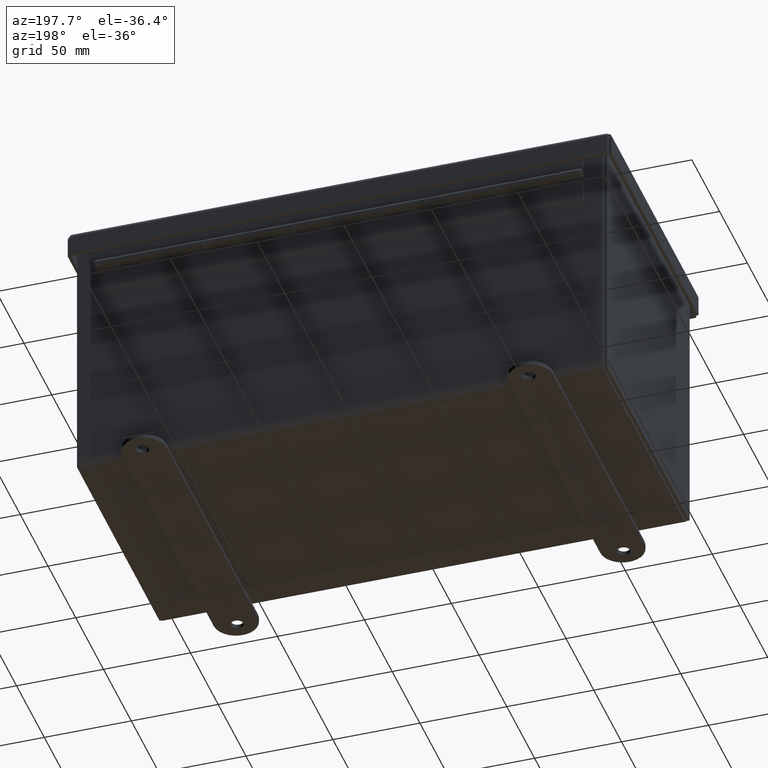
[diagram: clean part render]
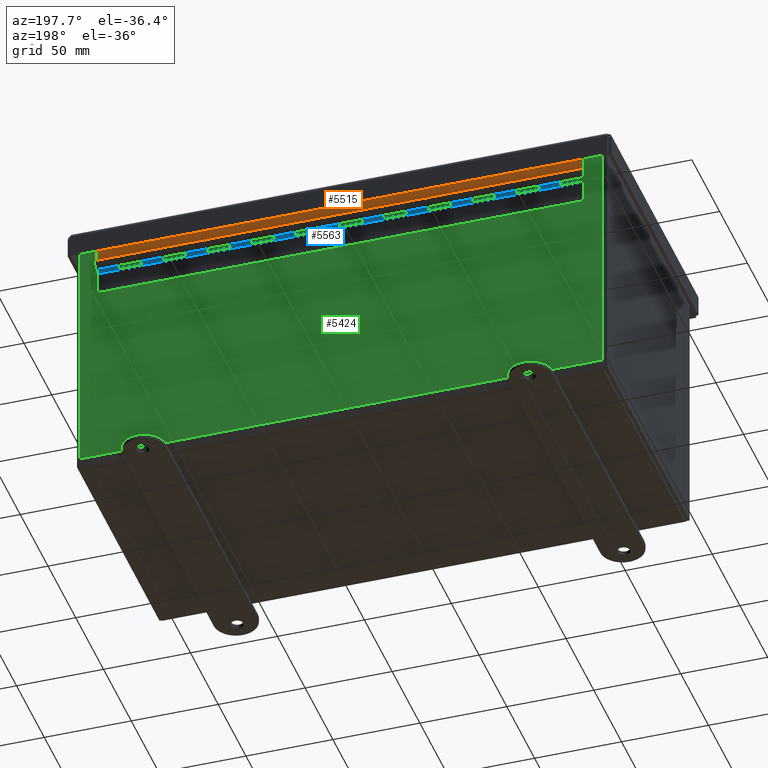
[diagram: same view with three faces highlighted in distinct colors, each labeled with its STEP entity id]
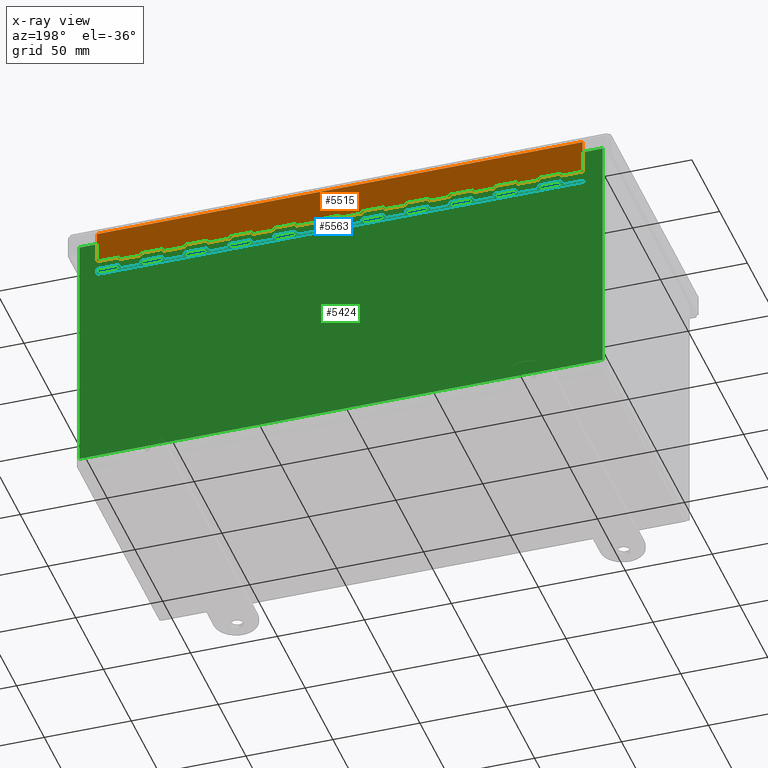
[diagram: x-ray of the same camera — body ghosted, the three highlighted faces saturated]
A machine part, auxiliary view with three faces highlighted in distinct colors.
The next image is the same camera in x-ray (body ghosted, the three faces saturated) — at least one of them is partly hidden behind the body in this view.
Their STEP definitions:

[orange] entity #5515 — the highlighted planar face has unit normal (0, 1, 0).
#279=PLANE('',#6085);
#518=FACE_OUTER_BOUND('',#843,.T.);
#843=EDGE_LOOP('',(#4172,#4173,#4174,#4175,#4176,#4177,#4178,#4179,#4180,
#4181,#4182,#4183,#4184,#4185,#4186,#4187,#4188,#4189,#4190,#4191,#4192,
#4193,#4194,#4195,#4196,#4197,#4198,#4199,#4200,#4201,#4202,#4203,#4204,
#4205,#4206,#4207,#4208,#4209,#4210,#4211,#4212,#4213,#4214,#4215,#4216,
#4217));
#1343=LINE('',#8250,#1911);
#1344=LINE('',#8258,#1912);
#1347=LINE('',#8265,#1915);
#1351=LINE('',#8275,#1919);
#1352=LINE('',#8283,#1920);
#1355=LINE('',#8290,#1923);
#1359=LINE('',#8300,#1927);
#1360=LINE('',#8308,#1928);
#1363=LINE('',#8315,#1931);
#1367=LINE('',#8325,#1935);
#1368=LINE('',#8333,#1936);
#1371=LINE('',#8340,#1939);
#1375=LINE('',#8350,#1943);
#1376=LINE('',#8358,#1944);
#1379=LINE('',#8365,#1947);
#1383=LINE('',#8375,#1951);
#1384=LINE('',#8383,#1952);
#1387=LINE('',#8390,#1955);
#1391=LINE('',#8400,#1959);
#1392=LINE('',#8408,#1960);
#1395=LINE('',#8415,#1963);
#1399=LINE('',#8425,#1967);
#1400=LINE('',#8433,#1968);
#1403=LINE('',#8440,#1971);
#1407=LINE('',#8450,#1975);
#1408=LINE('',#8458,#1976);
#1411=LINE('',#8465,#1979);
#1415=LINE('',#8475,#1983);
#1416=LINE('',#8483,#1984);
#1419=LINE('',#8490,#1987);
#1437=LINE('',#8517,#2005);
#1438=LINE('',#8520,#2006);
#1439=LINE('',#8522,#2007);
#1440=LINE('',#8524,#2008);
#1441=LINE('',#8526,#2009);
#1442=LINE('',#8528,#2010);
#1443=LINE('',#8530,#2011);
#1444=LINE('',#8532,#2012);
#1445=LINE('',#8534,#2013);
#1446=LINE('',#8538,#2014);
#1447=LINE('',#8540,#2015);
#1458=LINE('',#8566,#2026);
#1461=LINE('',#8570,#2029);
#1462=LINE('',#8573,#2030);
#1464=LINE('',#8577,#2032);
#1465=LINE('',#8578,#2033);
#1911=VECTOR('',#6708,0.393700787401575);
#1912=VECTOR('',#6715,0.393700787401575);
#1915=VECTOR('',#6722,0.393700787401575);
#1919=VECTOR('',#6730,0.393700787401575);
#1920=VECTOR('',#6737,0.393700787401575);
#1923=VECTOR('',#6744,0.393700787401575);
#1927=VECTOR('',#6752,0.393700787401575);
#1928=VECTOR('',#6759,0.393700787401575);
#1931=VECTOR('',#6766,0.393700787401575);
#1935=VECTOR('',#6774,0.393700787401575);
#1936=VECTOR('',#6781,0.393700787401575);
#1939=VECTOR('',#6788,0.393700787401575);
#1943=VECTOR('',#6796,0.393700787401575);
#1944=VECTOR('',#6803,0.393700787401575);
#1947=VECTOR('',#6810,0.393700787401575);
#1951=VECTOR('',#6818,0.393700787401575);
#1952=VECTOR('',#6825,0.393700787401575);
#1955=VECTOR('',#6832,0.393700787401575);
#1959=VECTOR('',#6840,0.393700787401575);
#1960=VECTOR('',#6847,0.393700787401575);
#1963=VECTOR('',#6854,0.393700787401575);
#1967=VECTOR('',#6862,0.393700787401575);
#1968=VECTOR('',#6869,0.393700787401575);
#1971=VECTOR('',#6876,0.393700787401575);
#1975=VECTOR('',#6884,0.393700787401575);
#1976=VECTOR('',#6891,0.393700787401575);
#1979=VECTOR('',#6898,0.393700787401575);
#1983=VECTOR('',#6906,0.393700787401575);
#1984=VECTOR('',#6913,0.393700787401575);
#1987=VECTOR('',#6920,0.393700787401575);
#2005=VECTOR('',#6942,0.393700787401575);
#2006=VECTOR('',#6947,0.393700787401575);
#2007=VECTOR('',#6950,0.393700787401575);
#2008=VECTOR('',#6953,0.393700787401575);
#2009=VECTOR('',#6956,0.393700787401575);
#2010=VECTOR('',#6959,0.393700787401575);
#2011=VECTOR('',#6962,0.393700787401575);
#2012=VECTOR('',#6965,0.393700787401575);
#2013=VECTOR('',#6968,0.393700787401575);
#2014=VECTOR('',#6973,0.393700787401575);
#2015=VECTOR('',#6976,0.393700787401575);
#2026=VECTOR('',#7011,0.393700787401575);
#2029=VECTOR('',#7016,0.393700787401575);
#2030=VECTOR('',#7019,0.393700787401575);
#2032=VECTOR('',#7023,0.393700787401575);
#2033=VECTOR('',#7024,0.393700787401575);
#2444=VERTEX_POINT('',#8244);
#2446=VERTEX_POINT('',#8248);
#2448=VERTEX_POINT('',#8254);
#2450=VERTEX_POINT('',#8257);
#2454=VERTEX_POINT('',#8269);
#2456=VERTEX_POINT('',#8273);
#2458=VERTEX_POINT('',#8279);
#2460=VERTEX_POINT('',#8282);
#2464=VERTEX_POINT('',#8294);
#2466=VERTEX_POINT('',#8298);
#2468=VERTEX_POINT('',#8304);
#2470=VERTEX_POINT('',#8307);
#2474=VERTEX_POINT('',#8319);
#2476=VERTEX_POINT('',#8323);
#2478=VERTEX_POINT('',#8329);
#2480=VERTEX_POINT('',#8332);
#2484=VERTEX_POINT('',#8344);
#2486=VERTEX_POINT('',#8348);
#2488=VERTEX_POINT('',#8354);
#2490=VERTEX_POINT('',#8357);
#2494=VERTEX_POINT('',#8369);
#2496=VERTEX_POINT('',#8373);
#2498=VERTEX_POINT('',#8379);
#2500=VERTEX_POINT('',#8382);
#2504=VERTEX_POINT('',#8394);
#2506=VERTEX_POINT('',#8398);
#2508=VERTEX_POINT('',#8404);
#2510=VERTEX_POINT('',#8407);
#2514=VERTEX_POINT('',#8419);
#2516=VERTEX_POINT('',#8423);
#2518=VERTEX_POINT('',#8429);
#2520=VERTEX_POINT('',#8432);
#2524=VERTEX_POINT('',#8444);
#2526=VERTEX_POINT('',#8448);
#2528=VERTEX_POINT('',#8454);
#2530=VERTEX_POINT('',#8457);
#2534=VERTEX_POINT('',#8469);
#2536=VERTEX_POINT('',#8473);
#2538=VERTEX_POINT('',#8479);
#2540=VERTEX_POINT('',#8482);
#2549=VERTEX_POINT('',#8516);
#2550=VERTEX_POINT('',#8536);
#2552=VERTEX_POINT('',#8564);
#2553=VERTEX_POINT('',#8565);
#2554=VERTEX_POINT('',#8572);
#2555=VERTEX_POINT('',#8576);
#2988=EDGE_CURVE('',#2444,#2446,#1343,.T.);
#2991=EDGE_CURVE('',#2450,#2448,#1344,.T.);
#2995=EDGE_CURVE('',#2446,#2450,#1347,.T.);
#3000=EDGE_CURVE('',#2454,#2456,#1351,.T.);
#3003=EDGE_CURVE('',#2460,#2458,#1352,.T.);
#3007=EDGE_CURVE('',#2456,#2460,#1355,.T.);
#3012=EDGE_CURVE('',#2464,#2466,#1359,.T.);
#3015=EDGE_CURVE('',#2470,#2468,#1360,.T.);
#3019=EDGE_CURVE('',#2466,#2470,#1363,.T.);
#3024=EDGE_CURVE('',#2474,#2476,#1367,.T.);
#3027=EDGE_CURVE('',#2480,#2478,#1368,.T.);
#3031=EDGE_CURVE('',#2476,#2480,#1371,.T.);
#3036=EDGE_CURVE('',#2484,#2486,#1375,.T.);
#3039=EDGE_CURVE('',#2490,#2488,#1376,.T.);
#3043=EDGE_CURVE('',#2486,#2490,#1379,.T.);
#3048=EDGE_CURVE('',#2494,#2496,#1383,.T.);
#3051=EDGE_CURVE('',#2500,#2498,#1384,.T.);
#3055=EDGE_CURVE('',#2496,#2500,#1387,.T.);
#3060=EDGE_CURVE('',#2504,#2506,#1391,.T.);
#3063=EDGE_CURVE('',#2510,#2508,#1392,.T.);
#3067=EDGE_CURVE('',#2506,#2510,#1395,.T.);
#3072=EDGE_CURVE('',#2514,#2516,#1399,.T.);
#3075=EDGE_CURVE('',#2520,#2518,#1400,.T.);
#3079=EDGE_CURVE('',#2516,#2520,#1403,.T.);
#3084=EDGE_CURVE('',#2524,#2526,#1407,.T.);
#3087=EDGE_CURVE('',#2530,#2528,#1408,.T.);
#3091=EDGE_CURVE('',#2526,#2530,#1411,.T.);
#3096=EDGE_CURVE('',#2534,#2536,#1415,.T.);
#3099=EDGE_CURVE('',#2540,#2538,#1416,.T.);
#3103=EDGE_CURVE('',#2536,#2540,#1419,.T.);
#3121=EDGE_CURVE('',#2549,#2534,#1437,.T.);
#3123=EDGE_CURVE('',#2538,#2524,#1438,.T.);
#3124=EDGE_CURVE('',#2528,#2514,#1439,.T.);
#3125=EDGE_CURVE('',#2518,#2504,#1440,.T.);
#3126=EDGE_CURVE('',#2508,#2494,#1441,.T.);
#3127=EDGE_CURVE('',#2498,#2484,#1442,.T.);
#3128=EDGE_CURVE('',#2488,#2474,#1443,.T.);
#3129=EDGE_CURVE('',#2478,#2464,#1444,.T.);
#3130=EDGE_CURVE('',#2468,#2454,#1445,.T.);
#3132=EDGE_CURVE('',#2448,#2550,#1446,.T.);
#3133=EDGE_CURVE('',#2458,#2444,#1447,.T.);
#3145=EDGE_CURVE('',#2552,#2553,#1458,.T.);
#3148=EDGE_CURVE('',#2553,#2549,#1461,.T.);
#3149=EDGE_CURVE('',#2554,#2552,#1462,.T.);
#3151=EDGE_CURVE('',#2550,#2555,#1464,.T.);
#3152=EDGE_CURVE('',#2554,#2555,#1465,.T.);
#4172=ORIENTED_EDGE('',*,*,#2991,.T.);
#4173=ORIENTED_EDGE('',*,*,#3132,.T.);
#4174=ORIENTED_EDGE('',*,*,#3151,.T.);
#4175=ORIENTED_EDGE('',*,*,#3152,.F.);
#4176=ORIENTED_EDGE('',*,*,#3149,.T.);
#4177=ORIENTED_EDGE('',*,*,#3145,.T.);
#4178=ORIENTED_EDGE('',*,*,#3148,.T.);
#4179=ORIENTED_EDGE('',*,*,#3121,.T.);
#4180=ORIENTED_EDGE('',*,*,#3096,.T.);
#4181=ORIENTED_EDGE('',*,*,#3103,.T.);
#4182=ORIENTED_EDGE('',*,*,#3099,.T.);
#4183=ORIENTED_EDGE('',*,*,#3123,.T.);
#4184=ORIENTED_EDGE('',*,*,#3084,.T.);
#4185=ORIENTED_EDGE('',*,*,#3091,.T.);
#4186=ORIENTED_EDGE('',*,*,#3087,.T.);
#4187=ORIENTED_EDGE('',*,*,#3124,.T.);
#4188=ORIENTED_EDGE('',*,*,#3072,.T.);
#4189=ORIENTED_EDGE('',*,*,#3079,.T.);
#4190=ORIENTED_EDGE('',*,*,#3075,.T.);
#4191=ORIENTED_EDGE('',*,*,#3125,.T.);
#4192=ORIENTED_EDGE('',*,*,#3060,.T.);
#4193=ORIENTED_EDGE('',*,*,#3067,.T.);
#4194=ORIENTED_EDGE('',*,*,#3063,.T.);
#4195=ORIENTED_EDGE('',*,*,#3126,.T.);
#4196=ORIENTED_EDGE('',*,*,#3048,.T.);
#4197=ORIENTED_EDGE('',*,*,#3055,.T.);
#4198=ORIENTED_EDGE('',*,*,#3051,.T.);
#4199=ORIENTED_EDGE('',*,*,#3127,.T.);
#4200=ORIENTED_EDGE('',*,*,#3036,.T.);
#4201=ORIENTED_EDGE('',*,*,#3043,.T.);
#4202=ORIENTED_EDGE('',*,*,#3039,.T.);
#4203=ORIENTED_EDGE('',*,*,#3128,.T.);
#4204=ORIENTED_EDGE('',*,*,#3024,.T.);
#4205=ORIENTED_EDGE('',*,*,#3031,.T.);
#4206=ORIENTED_EDGE('',*,*,#3027,.T.);
#4207=ORIENTED_EDGE('',*,*,#3129,.T.);
#4208=ORIENTED_EDGE('',*,*,#3012,.T.);
#4209=ORIENTED_EDGE('',*,*,#3019,.T.);
#4210=ORIENTED_EDGE('',*,*,#3015,.T.);
#4211=ORIENTED_EDGE('',*,*,#3130,.T.);
#4212=ORIENTED_EDGE('',*,*,#3000,.T.);
#4213=ORIENTED_EDGE('',*,*,#3007,.T.);
#4214=ORIENTED_EDGE('',*,*,#3003,.T.);
#4215=ORIENTED_EDGE('',*,*,#3133,.T.);
#4216=ORIENTED_EDGE('',*,*,#2988,.T.);
#4217=ORIENTED_EDGE('',*,*,#2995,.T.);
#5515=ADVANCED_FACE('',(#518),#279,.T.);
#6085=AXIS2_PLACEMENT_3D('',#8575,#7021,#7022);
#6708=DIRECTION('',(2.77105453058943E-16,-1.,0.));
#6715=DIRECTION('',(-2.77105453058943E-16,1.,0.));
#6722=DIRECTION('',(2.38341037104384E-47,-8.60109515974361E-32,1.));
#6730=DIRECTION('',(2.77105453058943E-16,-1.,0.));
#6737=DIRECTION('',(-2.77105453058943E-16,1.,0.));
#6744=DIRECTION('',(2.38341037104384E-47,-8.60109515974361E-32,1.));
#6752=DIRECTION('',(2.77105453058943E-16,-1.,0.));
#6759=DIRECTION('',(-2.77105453058943E-16,1.,0.));
#6766=DIRECTION('',(2.38341037104384E-47,-8.60109515974361E-32,1.));
#6774=DIRECTION('',(2.77105453058943E-16,-1.,0.));
#6781=DIRECTION('',(-2.77105453058943E-16,1.,0.));
#6788=DIRECTION('',(2.38341037104384E-47,-8.60109515974361E-32,1.));
#6796=DIRECTION('',(2.77105453058943E-16,-1.,0.));
#6803=DIRECTION('',(-2.77105453058943E-16,1.,0.));
#6810=DIRECTION('',(2.38341037104384E-47,-8.60109515974361E-32,1.));
#6818=DIRECTION('',(2.77105453058943E-16,-1.,0.));
#6825=DIRECTION('',(-2.77105453058943E-16,1.,0.));
#6832=DIRECTION('',(2.38341037104384E-47,-8.60109515974361E-32,1.));
#6840=DIRECTION('',(2.77105453058943E-16,-1.,0.));
#6847=DIRECTION('',(-2.77105453058943E-16,1.,0.));
#6854=DIRECTION('',(2.38341037104384E-47,-8.60109515974361E-32,1.));
#6862=DIRECTION('',(2.77105453058943E-16,-1.,0.));
#6869=DIRECTION('',(-2.77105453058943E-16,1.,0.));
#6876=DIRECTION('',(2.38341037104384E-47,-8.60109515974361E-32,1.));
#6884=DIRECTION('',(2.77105453058943E-16,-1.,0.));
#6891=DIRECTION('',(-2.77105453058943E-16,1.,0.));
#6898=DIRECTION('',(2.38341037104384E-47,-8.60109515974361E-32,1.));
#6906=DIRECTION('',(2.77105453058943E-16,-1.,0.));
#6913=DIRECTION('',(-2.77105453058943E-16,1.,0.));
#6920=DIRECTION('',(2.38341037104384E-47,-8.60109515974361E-32,1.));
#6942=DIRECTION('',(0.,0.,1.));
#6947=DIRECTION('',(0.,0.,1.));
#6950=DIRECTION('',(0.,0.,1.));
#6953=DIRECTION('',(0.,0.,1.));
#6956=DIRECTION('',(0.,0.,1.));
#6959=DIRECTION('',(0.,0.,1.));
#6962=DIRECTION('',(0.,0.,1.));
#6965=DIRECTION('',(0.,0.,1.));
#6968=DIRECTION('',(0.,0.,1.));
#6973=DIRECTION('',(0.,0.,1.));
#6976=DIRECTION('',(0.,0.,1.));
#7011=DIRECTION('',(2.38341037104384E-47,-8.60109515974361E-32,1.));
#7016=DIRECTION('',(-2.77105453058943E-16,1.,0.));
#7019=DIRECTION('',(-2.77105453058943E-16,1.,0.));
#7021=DIRECTION('center_axis',(1.,2.77105453058943E-16,0.));
#7022=DIRECTION('ref_axis',(0.,0.,-1.));
#7023=DIRECTION('',(2.77105453058943E-16,-1.,0.));
#7024=DIRECTION('',(0.,0.,1.));
#8244=CARTESIAN_POINT('',(0.0417999999999998,0.78868112150306,10.));
#8248=CARTESIAN_POINT('',(0.0417999999999998,0.73,10.));
#8250=CARTESIAN_POINT('',(0.0417999999999997,0.87934056075153,10.));
#8254=CARTESIAN_POINT('',(0.0417999999999998,0.78868112150306,10.515));
#8257=CARTESIAN_POINT('',(0.0417999999999998,0.73,10.515));
#8258=CARTESIAN_POINT('',(0.0417999999999997,0.87934056075153,10.515));
#8265=CARTESIAN_POINT('',(0.0417999999999998,0.73,5.12875));
#8269=CARTESIAN_POINT('',(0.0417999999999998,0.78868112150306,9.));
#8273=CARTESIAN_POINT('',(0.0417999999999998,0.73,9.));
#8275=CARTESIAN_POINT('',(0.0417999999999997,0.87934056075153,9.));
#8279=CARTESIAN_POINT('',(0.0417999999999998,0.78868112150306,9.515));
#8282=CARTESIAN_POINT('',(0.0417999999999998,0.73,9.515));
#8283=CARTESIAN_POINT('',(0.0417999999999997,0.87934056075153,9.515));
#8290=CARTESIAN_POINT('',(0.0417999999999998,0.73,4.62875));
#8294=CARTESIAN_POINT('',(0.0417999999999998,0.78868112150306,8.));
#8298=CARTESIAN_POINT('',(0.0417999999999998,0.73,8.));
#8300=CARTESIAN_POINT('',(0.0417999999999997,0.87934056075153,8.));
#8304=CARTESIAN_POINT('',(0.0417999999999998,0.78868112150306,8.515));
#8307=CARTESIAN_POINT('',(0.0417999999999998,0.73,8.515));
#8308=CARTESIAN_POINT('',(0.0417999999999997,0.87934056075153,8.515));
#8315=CARTESIAN_POINT('',(0.0417999999999998,0.73,4.12875));
#8319=CARTESIAN_POINT('',(0.0417999999999998,0.78868112150306,7.));
#8323=CARTESIAN_POINT('',(0.0417999999999998,0.73,7.));
#8325=CARTESIAN_POINT('',(0.0417999999999997,0.87934056075153,7.));
#8329=CARTESIAN_POINT('',(0.0417999999999998,0.78868112150306,7.515));
#8332=CARTESIAN_POINT('',(0.0417999999999998,0.73,7.515));
#8333=CARTESIAN_POINT('',(0.0417999999999997,0.87934056075153,7.515));
#8340=CARTESIAN_POINT('',(0.0417999999999998,0.73,3.62875));
#8344=CARTESIAN_POINT('',(0.0417999999999998,0.78868112150306,6.));
#8348=CARTESIAN_POINT('',(0.0417999999999998,0.73,6.));
#8350=CARTESIAN_POINT('',(0.0417999999999997,0.87934056075153,6.));
#8354=CARTESIAN_POINT('',(0.0417999999999998,0.78868112150306,6.515));
#8357=CARTESIAN_POINT('',(0.0417999999999998,0.73,6.515));
#8358=CARTESIAN_POINT('',(0.0417999999999997,0.87934056075153,6.515));
#8365=CARTESIAN_POINT('',(0.0417999999999998,0.73,3.12875));
#8369=CARTESIAN_POINT('',(0.0417999999999998,0.78868112150306,5.));
#8373=CARTESIAN_POINT('',(0.0417999999999998,0.73,5.));
#8375=CARTESIAN_POINT('',(0.0417999999999997,0.87934056075153,5.));
#8379=CARTESIAN_POINT('',(0.0417999999999998,0.78868112150306,5.515));
#8382=CARTESIAN_POINT('',(0.0417999999999998,0.73,5.515));
#8383=CARTESIAN_POINT('',(0.0417999999999997,0.87934056075153,5.515));
#8390=CARTESIAN_POINT('',(0.0417999999999998,0.73,2.62875));
#8394=CARTESIAN_POINT('',(0.0417999999999998,0.78868112150306,4.));
#8398=CARTESIAN_POINT('',(0.0417999999999998,0.73,4.));
#8400=CARTESIAN_POINT('',(0.0417999999999997,0.87934056075153,4.));
#8404=CARTESIAN_POINT('',(0.0417999999999998,0.78868112150306,4.515));
#8407=CARTESIAN_POINT('',(0.0417999999999998,0.73,4.515));
#8408=CARTESIAN_POINT('',(0.0417999999999997,0.87934056075153,4.515));
#8415=CARTESIAN_POINT('',(0.0417999999999998,0.73,2.12875));
#8419=CARTESIAN_POINT('',(0.0417999999999998,0.78868112150306,3.));
#8423=CARTESIAN_POINT('',(0.0417999999999998,0.73,3.));
#8425=CARTESIAN_POINT('',(0.0417999999999997,0.87934056075153,3.));
#8429=CARTESIAN_POINT('',(0.0417999999999998,0.78868112150306,3.515));
#8432=CARTESIAN_POINT('',(0.0417999999999998,0.73,3.515));
#8433=CARTESIAN_POINT('',(0.0417999999999997,0.87934056075153,3.515));
#8440=CARTESIAN_POINT('',(0.0417999999999998,0.73,1.62875));
#8444=CARTESIAN_POINT('',(0.0417999999999998,0.78868112150306,2.));
#8448=CARTESIAN_POINT('',(0.0417999999999998,0.73,2.));
#8450=CARTESIAN_POINT('',(0.0417999999999997,0.87934056075153,2.));
#8454=CARTESIAN_POINT('',(0.0417999999999998,0.78868112150306,2.515));
#8457=CARTESIAN_POINT('',(0.0417999999999998,0.73,2.515));
#8458=CARTESIAN_POINT('',(0.0417999999999997,0.87934056075153,2.515));
#8465=CARTESIAN_POINT('',(0.0417999999999998,0.73,1.12875));
#8469=CARTESIAN_POINT('',(0.0417999999999998,0.78868112150306,1.));
#8473=CARTESIAN_POINT('',(0.0417999999999998,0.73,1.));
#8475=CARTESIAN_POINT('',(0.0417999999999997,0.87934056075153,1.));
#8479=CARTESIAN_POINT('',(0.0417999999999998,0.78868112150306,1.515));
#8482=CARTESIAN_POINT('',(0.0417999999999998,0.73,1.515));
#8483=CARTESIAN_POINT('',(0.0417999999999997,0.87934056075153,1.515));
#8490=CARTESIAN_POINT('',(0.0417999999999998,0.73,0.62875));
#8516=CARTESIAN_POINT('',(0.0417999999999998,0.78868112150306,0.515));
#8517=CARTESIAN_POINT('',(0.0417999999999998,0.78868112150306,0.));
#8520=CARTESIAN_POINT('',(0.0417999999999998,0.78868112150306,0.));
#8522=CARTESIAN_POINT('',(0.0417999999999998,0.78868112150306,0.));
#8524=CARTESIAN_POINT('',(0.0417999999999998,0.78868112150306,0.));
#8526=CARTESIAN_POINT('',(0.0417999999999998,0.78868112150306,0.));
#8528=CARTESIAN_POINT('',(0.0417999999999998,0.78868112150306,0.));
#8530=CARTESIAN_POINT('',(0.0417999999999998,0.78868112150306,0.));
#8532=CARTESIAN_POINT('',(0.0417999999999998,0.78868112150306,0.));
#8534=CARTESIAN_POINT('',(0.0417999999999998,0.78868112150306,0.));
#8536=CARTESIAN_POINT('',(0.0417999999999998,0.78868112150306,11.));
#8538=CARTESIAN_POINT('',(0.0417999999999998,0.78868112150306,0.));
#8540=CARTESIAN_POINT('',(0.0417999999999998,0.78868112150306,0.));
#8564=CARTESIAN_POINT('',(0.0417999999999998,0.73,0.));
#8565=CARTESIAN_POINT('',(0.0417999999999998,0.73,0.515));
#8566=CARTESIAN_POINT('',(0.0417999999999998,0.73,0.12875));
#8570=CARTESIAN_POINT('',(0.0417999999999997,0.87934056075153,0.515));
#8572=CARTESIAN_POINT('',(0.0418,5.11902362043593E-18,0.));
#8573=CARTESIAN_POINT('',(0.0418,0.,0.));
#8575=CARTESIAN_POINT('Origin',(0.0417999999999998,0.78868112150306,0.));
#8576=CARTESIAN_POINT('',(0.0418,5.11902362043593E-18,11.));
#8577=CARTESIAN_POINT('',(0.0418,0.,11.));
#8578=CARTESIAN_POINT('',(0.0418,5.11902362043593E-18,0.));

[blue] entity #5563 — the highlighted planar face has unit normal (0, 0.9587, -0.2845).
#315=PLANE('',#6177);
#566=FACE_OUTER_BOUND('',#911,.T.);
#911=EDGE_LOOP('',(#4464,#4465,#4466,#4467,#4468,#4469,#4470,#4471,#4472,
#4473,#4474,#4475,#4476,#4477,#4478,#4479,#4480,#4481,#4482,#4483,#4484,
#4485,#4486,#4487,#4488,#4489,#4490,#4491,#4492,#4493,#4494,#4495,#4496,
#4497,#4498,#4499,#4500,#4501,#4502,#4503,#4504,#4505,#4506,#4507,#4508,
#4509));
#1471=LINE('',#8603,#2039);
#1474=LINE('',#8610,#2042);
#1477=LINE('',#8620,#2045);
#1479=LINE('',#8631,#2047);
#1482=LINE('',#8637,#2050);
#1485=LINE('',#8645,#2053);
#1487=LINE('',#8656,#2055);
#1490=LINE('',#8662,#2058);
#1493=LINE('',#8670,#2061);
#1495=LINE('',#8681,#2063);
#1498=LINE('',#8687,#2066);
#1501=LINE('',#8695,#2069);
#1503=LINE('',#8706,#2071);
#1506=LINE('',#8712,#2074);
#1509=LINE('',#8720,#2077);
#1511=LINE('',#8731,#2079);
#1514=LINE('',#8737,#2082);
#1517=LINE('',#8745,#2085);
#1519=LINE('',#8756,#2087);
#1522=LINE('',#8762,#2090);
#1525=LINE('',#8770,#2093);
#1527=LINE('',#8781,#2095);
#1530=LINE('',#8787,#2098);
#1533=LINE('',#8795,#2101);
#1535=LINE('',#8806,#2103);
#1538=LINE('',#8812,#2106);
#1541=LINE('',#8820,#2109);
#1543=LINE('',#8831,#2111);
#1546=LINE('',#8837,#2114);
#1547=LINE('',#8840,#2115);
#1568=LINE('',#8874,#2136);
#1569=LINE('',#8876,#2137);
#1570=LINE('',#8878,#2138);
#1571=LINE('',#8880,#2139);
#1572=LINE('',#8882,#2140);
#1573=LINE('',#8884,#2141);
#1574=LINE('',#8886,#2142);
#1575=LINE('',#8888,#2143);
#1576=LINE('',#8890,#2144);
#1577=LINE('',#8892,#2145);
#1578=LINE('',#8895,#2146);
#1579=LINE('',#8897,#2147);
#1580=LINE('',#8899,#2148);
#1581=LINE('',#8901,#2149);
#1582=LINE('',#8903,#2150);
#1583=LINE('',#8904,#2151);
#2039=VECTOR('',#7054,0.393700787401575);
#2042=VECTOR('',#7061,0.393700787401575);
#2045=VECTOR('',#7068,0.393700787401575);
#2047=VECTOR('',#7078,0.393700787401575);
#2050=VECTOR('',#7085,0.393700787401575);
#2053=VECTOR('',#7090,0.393700787401575);
#2055=VECTOR('',#7100,0.393700787401575);
#2058=VECTOR('',#7107,0.393700787401575);
#2061=VECTOR('',#7112,0.393700787401575);
#2063=VECTOR('',#7122,0.393700787401575);
#2066=VECTOR('',#7129,0.393700787401575);
#2069=VECTOR('',#7134,0.393700787401575);
#2071=VECTOR('',#7144,0.393700787401575);
#2074=VECTOR('',#7151,0.393700787401575);
#2077=VECTOR('',#7156,0.393700787401575);
#2079=VECTOR('',#7166,0.393700787401575);
#2082=VECTOR('',#7173,0.393700787401575);
#2085=VECTOR('',#7178,0.393700787401575);
#2087=VECTOR('',#7188,0.393700787401575);
#2090=VECTOR('',#7195,0.393700787401575);
#2093=VECTOR('',#7200,0.393700787401575);
#2095=VECTOR('',#7210,0.393700787401575);
#2098=VECTOR('',#7217,0.393700787401575);
#2101=VECTOR('',#7222,0.393700787401575);
#2103=VECTOR('',#7232,0.393700787401575);
#2106=VECTOR('',#7239,0.393700787401575);
#2109=VECTOR('',#7244,0.393700787401575);
#2111=VECTOR('',#7254,0.393700787401575);
#2114=VECTOR('',#7261,0.393700787401575);
#2115=VECTOR('',#7264,0.393700787401575);
#2136=VECTOR('',#7291,0.393700787401575);
#2137=VECTOR('',#7294,0.393700787401575);
#2138=VECTOR('',#7297,0.393700787401575);
#2139=VECTOR('',#7300,0.393700787401575);
#2140=VECTOR('',#7303,0.393700787401575);
#2141=VECTOR('',#7306,0.393700787401575);
#2142=VECTOR('',#7309,0.393700787401575);
#2143=VECTOR('',#7312,0.393700787401575);
#2144=VECTOR('',#7315,0.393700787401575);
#2145=VECTOR('',#7318,0.393700787401575);
#2146=VECTOR('',#7321,0.393700787401575);
#2147=VECTOR('',#7322,0.393700787401575);
#2148=VECTOR('',#7323,0.393700787401575);
#2149=VECTOR('',#7324,0.393700787401575);
#2150=VECTOR('',#7325,0.393700787401575);
#2151=VECTOR('',#7326,0.393700787401575);
#2561=VERTEX_POINT('',#8600);
#2562=VERTEX_POINT('',#8602);
#2564=VERTEX_POINT('',#8608);
#2568=VERTEX_POINT('',#8617);
#2569=VERTEX_POINT('',#8619);
#2573=VERTEX_POINT('',#8628);
#2574=VERTEX_POINT('',#8630);
#2578=VERTEX_POINT('',#8642);
#2579=VERTEX_POINT('',#8644);
#2583=VERTEX_POINT('',#8653);
#2584=VERTEX_POINT('',#8655);
#2588=VERTEX_POINT('',#8667);
#2589=VERTEX_POINT('',#8669);
#2593=VERTEX_POINT('',#8678);
#2594=VERTEX_POINT('',#8680);
#2598=VERTEX_POINT('',#8692);
#2599=VERTEX_POINT('',#8694);
#2603=VERTEX_POINT('',#8703);
#2604=VERTEX_POINT('',#8705);
#2608=VERTEX_POINT('',#8717);
#2609=VERTEX_POINT('',#8719);
#2613=VERTEX_POINT('',#8728);
#2614=VERTEX_POINT('',#8730);
#2618=VERTEX_POINT('',#8742);
#2619=VERTEX_POINT('',#8744);
#2623=VERTEX_POINT('',#8753);
#2624=VERTEX_POINT('',#8755);
#2628=VERTEX_POINT('',#8767);
#2629=VERTEX_POINT('',#8769);
#2633=VERTEX_POINT('',#8778);
#2634=VERTEX_POINT('',#8780);
#2638=VERTEX_POINT('',#8792);
#2639=VERTEX_POINT('',#8794);
#2643=VERTEX_POINT('',#8803);
#2644=VERTEX_POINT('',#8805);
#2648=VERTEX_POINT('',#8817);
#2649=VERTEX_POINT('',#8819);
#2653=VERTEX_POINT('',#8828);
#2654=VERTEX_POINT('',#8830);
#2656=VERTEX_POINT('',#8839);
#2666=VERTEX_POINT('',#8872);
#2667=VERTEX_POINT('',#8894);
#2668=VERTEX_POINT('',#8896);
#2669=VERTEX_POINT('',#8898);
#2670=VERTEX_POINT('',#8900);
#2671=VERTEX_POINT('',#8902);
#3161=EDGE_CURVE('',#2562,#2561,#1471,.T.);
#3165=EDGE_CURVE('',#2561,#2564,#1474,.T.);
#3169=EDGE_CURVE('',#2569,#2568,#1477,.T.);
#3174=EDGE_CURVE('',#2574,#2573,#1479,.T.);
#3178=EDGE_CURVE('',#2568,#2574,#1482,.T.);
#3181=EDGE_CURVE('',#2579,#2578,#1485,.T.);
#3186=EDGE_CURVE('',#2584,#2583,#1487,.T.);
#3190=EDGE_CURVE('',#2578,#2584,#1490,.T.);
#3193=EDGE_CURVE('',#2589,#2588,#1493,.T.);
#3198=EDGE_CURVE('',#2594,#2593,#1495,.T.);
#3202=EDGE_CURVE('',#2588,#2594,#1498,.T.);
#3205=EDGE_CURVE('',#2599,#2598,#1501,.T.);
#3210=EDGE_CURVE('',#2604,#2603,#1503,.T.);
#3214=EDGE_CURVE('',#2598,#2604,#1506,.T.);
#3217=EDGE_CURVE('',#2609,#2608,#1509,.T.);
#3222=EDGE_CURVE('',#2614,#2613,#1511,.T.);
#3226=EDGE_CURVE('',#2608,#2614,#1514,.T.);
#3229=EDGE_CURVE('',#2619,#2618,#1517,.T.);
#3234=EDGE_CURVE('',#2624,#2623,#1519,.T.);
#3238=EDGE_CURVE('',#2618,#2624,#1522,.T.);
#3241=EDGE_CURVE('',#2629,#2628,#1525,.T.);
#3246=EDGE_CURVE('',#2634,#2633,#1527,.T.);
#3250=EDGE_CURVE('',#2628,#2634,#1530,.T.);
#3253=EDGE_CURVE('',#2639,#2638,#1533,.T.);
#3258=EDGE_CURVE('',#2644,#2643,#1535,.T.);
#3262=EDGE_CURVE('',#2638,#2644,#1538,.T.);
#3265=EDGE_CURVE('',#2649,#2648,#1541,.T.);
#3270=EDGE_CURVE('',#2654,#2653,#1543,.T.);
#3274=EDGE_CURVE('',#2648,#2654,#1546,.T.);
#3275=EDGE_CURVE('',#2656,#2562,#1547,.T.);
#3297=EDGE_CURVE('',#2653,#2666,#1568,.T.);
#3298=EDGE_CURVE('',#2643,#2649,#1569,.T.);
#3299=EDGE_CURVE('',#2633,#2639,#1570,.T.);
#3300=EDGE_CURVE('',#2623,#2629,#1571,.T.);
#3301=EDGE_CURVE('',#2613,#2619,#1572,.T.);
#3302=EDGE_CURVE('',#2603,#2609,#1573,.T.);
#3303=EDGE_CURVE('',#2593,#2599,#1574,.T.);
#3304=EDGE_CURVE('',#2583,#2589,#1575,.T.);
#3305=EDGE_CURVE('',#2573,#2579,#1576,.T.);
#3306=EDGE_CURVE('',#2564,#2569,#1577,.T.);
#3307=EDGE_CURVE('',#2666,#2667,#1578,.T.);
#3308=EDGE_CURVE('',#2667,#2668,#1579,.T.);
#3309=EDGE_CURVE('',#2668,#2669,#1580,.T.);
#3310=EDGE_CURVE('',#2669,#2670,#1581,.T.);
#3311=EDGE_CURVE('',#2670,#2671,#1582,.T.);
#3312=EDGE_CURVE('',#2656,#2671,#1583,.T.);
#4464=ORIENTED_EDGE('',*,*,#3161,.T.);
#4465=ORIENTED_EDGE('',*,*,#3165,.T.);
#4466=ORIENTED_EDGE('',*,*,#3306,.T.);
#4467=ORIENTED_EDGE('',*,*,#3169,.T.);
#4468=ORIENTED_EDGE('',*,*,#3178,.T.);
#4469=ORIENTED_EDGE('',*,*,#3174,.T.);
#4470=ORIENTED_EDGE('',*,*,#3305,.T.);
#4471=ORIENTED_EDGE('',*,*,#3181,.T.);
#4472=ORIENTED_EDGE('',*,*,#3190,.T.);
#4473=ORIENTED_EDGE('',*,*,#3186,.T.);
#4474=ORIENTED_EDGE('',*,*,#3304,.T.);
#4475=ORIENTED_EDGE('',*,*,#3193,.T.);
#4476=ORIENTED_EDGE('',*,*,#3202,.T.);
#4477=ORIENTED_EDGE('',*,*,#3198,.T.);
#4478=ORIENTED_EDGE('',*,*,#3303,.T.);
#4479=ORIENTED_EDGE('',*,*,#3205,.T.);
#4480=ORIENTED_EDGE('',*,*,#3214,.T.);
#4481=ORIENTED_EDGE('',*,*,#3210,.T.);
#4482=ORIENTED_EDGE('',*,*,#3302,.T.);
#4483=ORIENTED_EDGE('',*,*,#3217,.T.);
#4484=ORIENTED_EDGE('',*,*,#3226,.T.);
#4485=ORIENTED_EDGE('',*,*,#3222,.T.);
#4486=ORIENTED_EDGE('',*,*,#3301,.T.);
#4487=ORIENTED_EDGE('',*,*,#3229,.T.);
#4488=ORIENTED_EDGE('',*,*,#3238,.T.);
#4489=ORIENTED_EDGE('',*,*,#3234,.T.);
#4490=ORIENTED_EDGE('',*,*,#3300,.T.);
#4491=ORIENTED_EDGE('',*,*,#3241,.T.);
#4492=ORIENTED_EDGE('',*,*,#3250,.T.);
#4493=ORIENTED_EDGE('',*,*,#3246,.T.);
#4494=ORIENTED_EDGE('',*,*,#3299,.T.);
#4495=ORIENTED_EDGE('',*,*,#3253,.T.);
#4496=ORIENTED_EDGE('',*,*,#3262,.T.);
#4497=ORIENTED_EDGE('',*,*,#3258,.T.);
#4498=ORIENTED_EDGE('',*,*,#3298,.T.);
#4499=ORIENTED_EDGE('',*,*,#3265,.T.);
#4500=ORIENTED_EDGE('',*,*,#3274,.T.);
#4501=ORIENTED_EDGE('',*,*,#3270,.T.);
#4502=ORIENTED_EDGE('',*,*,#3297,.T.);
#4503=ORIENTED_EDGE('',*,*,#3307,.T.);
#4504=ORIENTED_EDGE('',*,*,#3308,.T.);
#4505=ORIENTED_EDGE('',*,*,#3309,.T.);
#4506=ORIENTED_EDGE('',*,*,#3310,.T.);
#4507=ORIENTED_EDGE('',*,*,#3311,.T.);
#4508=ORIENTED_EDGE('',*,*,#3312,.F.);
#4509=ORIENTED_EDGE('',*,*,#3275,.T.);
#5563=ADVANCED_FACE('',(#566),#315,.T.);
#6177=AXIS2_PLACEMENT_3D('',#8893,#7319,#7320);
#7054=DIRECTION('',(0.,0.,1.));
#7061=DIRECTION('',(0.284534249411985,0.958665875533055,0.));
#7068=DIRECTION('',(-0.284534249411985,-0.958665875533055,0.));
#7078=DIRECTION('',(0.284534249411985,0.958665875533055,0.));
#7085=DIRECTION('',(0.,0.,1.));
#7090=DIRECTION('',(-0.284534249411985,-0.958665875533055,0.));
#7100=DIRECTION('',(0.284534249411985,0.958665875533055,0.));
#7107=DIRECTION('',(0.,0.,1.));
#7112=DIRECTION('',(-0.284534249411985,-0.958665875533055,0.));
#7122=DIRECTION('',(0.284534249411985,0.958665875533055,0.));
#7129=DIRECTION('',(0.,0.,1.));
#7134=DIRECTION('',(-0.284534249411985,-0.958665875533055,0.));
#7144=DIRECTION('',(0.284534249411985,0.958665875533055,0.));
#7151=DIRECTION('',(0.,0.,1.));
#7156=DIRECTION('',(-0.284534249411985,-0.958665875533055,0.));
#7166=DIRECTION('',(0.284534249411985,0.958665875533055,0.));
#7173=DIRECTION('',(0.,0.,1.));
#7178=DIRECTION('',(-0.284534249411985,-0.958665875533055,0.));
#7188=DIRECTION('',(0.284534249411985,0.958665875533055,0.));
#7195=DIRECTION('',(0.,0.,1.));
#7200=DIRECTION('',(-0.284534249411985,-0.958665875533055,0.));
#7210=DIRECTION('',(0.284534249411985,0.958665875533055,0.));
#7217=DIRECTION('',(0.,0.,1.));
#7222=DIRECTION('',(-0.284534249411985,-0.958665875533055,0.));
#7232=DIRECTION('',(0.284534249411985,0.958665875533055,0.));
#7239=DIRECTION('',(0.,0.,1.));
#7244=DIRECTION('',(-0.284534249411985,-0.958665875533055,0.));
#7254=DIRECTION('',(0.284534249411985,0.958665875533055,0.));
#7261=DIRECTION('',(0.,0.,1.));
#7264=DIRECTION('',(0.284534249411985,0.958665875533055,0.));
#7291=DIRECTION('',(0.,0.,1.));
#7294=DIRECTION('',(0.,0.,1.));
#7297=DIRECTION('',(0.,0.,1.));
#7300=DIRECTION('',(0.,0.,1.));
#7303=DIRECTION('',(0.,0.,1.));
#7306=DIRECTION('',(0.,0.,1.));
#7309=DIRECTION('',(0.,0.,1.));
#7312=DIRECTION('',(0.,0.,1.));
#7315=DIRECTION('',(0.,0.,1.));
#7318=DIRECTION('',(0.,0.,1.));
#7319=DIRECTION('center_axis',(0.958665875533055,-0.284534249411985,0.));
#7320=DIRECTION('ref_axis',(0.,0.,-1.));
#7321=DIRECTION('',(-0.284534249411985,-0.958665875533055,0.));
#7322=DIRECTION('',(0.,0.,1.));
#7323=DIRECTION('',(0.284534249411985,0.958665875533055,0.));
#7324=DIRECTION('',(0.,0.,1.));
#7325=DIRECTION('',(-0.284534249411985,-0.958665875533055,0.));
#7326=DIRECTION('',(0.,0.,1.));
#8600=CARTESIAN_POINT('',(0.0477360462633298,0.49,0.515000000000002));
#8602=CARTESIAN_POINT('',(0.0477360462633297,0.49,2.62257407391769E-15));
#8603=CARTESIAN_POINT('',(0.0477360462633297,0.49,0.128750000000001));
#8608=CARTESIAN_POINT('',(0.0715711551889098,0.570306344890952,0.515000000000002));
#8610=CARTESIAN_POINT('',(0.0901221099103625,0.632809074480686,0.515000000000002));
#8617=CARTESIAN_POINT('',(0.0477360462633297,0.49,1.));
#8619=CARTESIAN_POINT('',(0.0715711551889098,0.570306344890952,1.));
#8620=CARTESIAN_POINT('',(0.10064687599186,0.668269600273805,1.));
#8628=CARTESIAN_POINT('',(0.0715711551889098,0.570306344890952,1.515));
#8630=CARTESIAN_POINT('',(0.0477360462633298,0.49,1.515));
#8631=CARTESIAN_POINT('',(0.0901221099103625,0.632809074480686,1.515));
#8637=CARTESIAN_POINT('',(0.0477360462633297,0.49,0.628750000000001));
#8642=CARTESIAN_POINT('',(0.0477360462633297,0.49,2.));
#8644=CARTESIAN_POINT('',(0.0715711551889098,0.570306344890952,2.));
#8645=CARTESIAN_POINT('',(0.10064687599186,0.668269600273805,2.));
#8653=CARTESIAN_POINT('',(0.0715711551889098,0.570306344890952,2.515));
#8655=CARTESIAN_POINT('',(0.0477360462633298,0.49,2.515));
#8656=CARTESIAN_POINT('',(0.0901221099103625,0.632809074480686,2.515));
#8662=CARTESIAN_POINT('',(0.0477360462633297,0.49,1.12875));
#8667=CARTESIAN_POINT('',(0.0477360462633297,0.49,3.));
#8669=CARTESIAN_POINT('',(0.0715711551889098,0.570306344890952,3.));
#8670=CARTESIAN_POINT('',(0.10064687599186,0.668269600273805,3.));
#8678=CARTESIAN_POINT('',(0.0715711551889098,0.570306344890952,3.515));
#8680=CARTESIAN_POINT('',(0.0477360462633298,0.49,3.515));
#8681=CARTESIAN_POINT('',(0.0901221099103625,0.632809074480686,3.515));
#8687=CARTESIAN_POINT('',(0.0477360462633297,0.49,1.62875));
#8692=CARTESIAN_POINT('',(0.0477360462633297,0.49,4.));
#8694=CARTESIAN_POINT('',(0.0715711551889098,0.570306344890952,4.));
#8695=CARTESIAN_POINT('',(0.10064687599186,0.668269600273805,4.));
#8703=CARTESIAN_POINT('',(0.0715711551889098,0.570306344890952,4.515));
#8705=CARTESIAN_POINT('',(0.0477360462633298,0.49,4.515));
#8706=CARTESIAN_POINT('',(0.0901221099103625,0.632809074480686,4.515));
#8712=CARTESIAN_POINT('',(0.0477360462633297,0.49,2.12875));
#8717=CARTESIAN_POINT('',(0.0477360462633297,0.49,5.));
#8719=CARTESIAN_POINT('',(0.0715711551889098,0.570306344890952,5.));
#8720=CARTESIAN_POINT('',(0.10064687599186,0.668269600273805,5.));
#8728=CARTESIAN_POINT('',(0.0715711551889098,0.570306344890952,5.515));
#8730=CARTESIAN_POINT('',(0.0477360462633298,0.49,5.515));
#8731=CARTESIAN_POINT('',(0.0901221099103625,0.632809074480686,5.515));
#8737=CARTESIAN_POINT('',(0.0477360462633297,0.49,2.62875));
#8742=CARTESIAN_POINT('',(0.0477360462633297,0.49,6.));
#8744=CARTESIAN_POINT('',(0.0715711551889098,0.570306344890952,6.));
#8745=CARTESIAN_POINT('',(0.10064687599186,0.668269600273805,6.));
#8753=CARTESIAN_POINT('',(0.0715711551889098,0.570306344890952,6.515));
#8755=CARTESIAN_POINT('',(0.0477360462633298,0.49,6.515));
#8756=CARTESIAN_POINT('',(0.0901221099103625,0.632809074480686,6.515));
#8762=CARTESIAN_POINT('',(0.0477360462633297,0.49,3.12875));
#8767=CARTESIAN_POINT('',(0.0477360462633297,0.49,7.));
#8769=CARTESIAN_POINT('',(0.0715711551889098,0.570306344890952,7.));
#8770=CARTESIAN_POINT('',(0.10064687599186,0.668269600273805,7.));
#8778=CARTESIAN_POINT('',(0.0715711551889098,0.570306344890952,7.515));
#8780=CARTESIAN_POINT('',(0.0477360462633298,0.49,7.515));
#8781=CARTESIAN_POINT('',(0.0901221099103625,0.632809074480686,7.515));
#8787=CARTESIAN_POINT('',(0.0477360462633297,0.49,3.62875));
#8792=CARTESIAN_POINT('',(0.0477360462633297,0.49,8.));
#8794=CARTESIAN_POINT('',(0.0715711551889098,0.570306344890952,8.));
#8795=CARTESIAN_POINT('',(0.10064687599186,0.668269600273805,8.));
#8803=CARTESIAN_POINT('',(0.0715711551889098,0.570306344890952,8.515));
#8805=CARTESIAN_POINT('',(0.0477360462633298,0.49,8.515));
#8806=CARTESIAN_POINT('',(0.0901221099103625,0.632809074480686,8.515));
#8812=CARTESIAN_POINT('',(0.0477360462633297,0.49,4.12875));
#8817=CARTESIAN_POINT('',(0.0477360462633297,0.49,9.));
#8819=CARTESIAN_POINT('',(0.0715711551889098,0.570306344890952,9.));
#8820=CARTESIAN_POINT('',(0.10064687599186,0.668269600273805,9.));
#8828=CARTESIAN_POINT('',(0.0715711551889098,0.570306344890952,9.515));
#8830=CARTESIAN_POINT('',(0.0477360462633298,0.49,9.515));
#8831=CARTESIAN_POINT('',(0.0901221099103625,0.632809074480686,9.515));
#8837=CARTESIAN_POINT('',(0.0477360462633297,0.49,4.62875));
#8839=CARTESIAN_POINT('',(0.0418,0.47,0.));
#8840=CARTESIAN_POINT('',(0.0418,0.47,0.));
#8872=CARTESIAN_POINT('',(0.0715711551889098,0.570306344890952,10.));
#8874=CARTESIAN_POINT('',(0.0715711551889098,0.570306344890952,0.));
#8876=CARTESIAN_POINT('',(0.0715711551889098,0.570306344890952,0.));
#8878=CARTESIAN_POINT('',(0.0715711551889098,0.570306344890952,0.));
#8880=CARTESIAN_POINT('',(0.0715711551889098,0.570306344890952,0.));
#8882=CARTESIAN_POINT('',(0.0715711551889098,0.570306344890952,0.));
#8884=CARTESIAN_POINT('',(0.0715711551889098,0.570306344890952,0.));
#8886=CARTESIAN_POINT('',(0.0715711551889098,0.570306344890952,0.));
#8888=CARTESIAN_POINT('',(0.0715711551889098,0.570306344890952,0.));
#8890=CARTESIAN_POINT('',(0.0715711551889098,0.570306344890952,0.));
#8892=CARTESIAN_POINT('',(0.0715711551889098,0.570306344890952,0.));
#8893=CARTESIAN_POINT('Origin',(0.0715711551889098,0.570306344890952,0.));
#8894=CARTESIAN_POINT('',(0.0477360462633297,0.49,10.));
#8895=CARTESIAN_POINT('',(0.10064687599186,0.668269600273805,10.));
#8896=CARTESIAN_POINT('',(0.0477360462633298,0.49,10.515));
#8897=CARTESIAN_POINT('',(0.0477360462633297,0.49,5.12875));
#8898=CARTESIAN_POINT('',(0.0715711551889098,0.570306344890952,10.515));
#8899=CARTESIAN_POINT('',(0.0901221099103625,0.632809074480686,10.515));
#8900=CARTESIAN_POINT('',(0.0715711551889098,0.570306344890952,11.));
#8901=CARTESIAN_POINT('',(0.0715711551889098,0.570306344890952,0.));
#8902=CARTESIAN_POINT('',(0.0418,0.47,11.));
#8903=CARTESIAN_POINT('',(0.0418,0.47,11.));
#8904=CARTESIAN_POINT('',(0.0418,0.47,0.));

[green] entity #5424 — the highlighted planar face has unit normal (0, -1, 0).
#216=PLANE('',#5935);
#427=FACE_OUTER_BOUND('',#727,.T.);
#727=EDGE_LOOP('',(#3725,#3726,#3727,#3728));
#1240=LINE('',#7988,#1808);
#1257=LINE('',#8027,#1825);
#1260=LINE('',#8034,#1828);
#1274=LINE('',#8069,#1842);
#1808=VECTOR('',#6431,0.393700787401575);
#1825=VECTOR('',#6472,0.393700787401575);
#1828=VECTOR('',#6479,0.18881);
#1842=VECTOR('',#6519,0.393700787401575);
#2373=VERTEX_POINT('',#7985);
#2374=VERTEX_POINT('',#7987);
#2384=VERTEX_POINT('',#8025);
#2386=VERTEX_POINT('',#8033);
#2861=EDGE_CURVE('',#2374,#2373,#1240,.T.);
#2881=EDGE_CURVE('',#2384,#2373,#1257,.T.);
#2884=EDGE_CURVE('',#2374,#2386,#1260,.T.);
#2902=EDGE_CURVE('',#2384,#2386,#1274,.T.);
#3725=ORIENTED_EDGE('',*,*,#2861,.T.);
#3726=ORIENTED_EDGE('',*,*,#2881,.F.);
#3727=ORIENTED_EDGE('',*,*,#2902,.T.);
#3728=ORIENTED_EDGE('',*,*,#2884,.F.);
#5424=ADVANCED_FACE('',(#427),#216,.F.);
#5935=AXIS2_PLACEMENT_3D('',#8083,#6535,#6536);
#6431=DIRECTION('',(1.,1.18053759308059E-16,-1.18014358146819E-16));
#6472=DIRECTION('',(-6.16297582203915E-31,5.39030285815812E-15,1.));
#6479=DIRECTION('',(6.35316057827913E-31,-5.32907051820075E-15,-1.));
#6519=DIRECTION('',(-1.,-1.1805375930806E-16,2.12384192048109E-34));
#6535=DIRECTION('center_axis',(1.1805375930806E-16,-1.,5.39202780811649E-15));
#6536=DIRECTION('ref_axis',(1.,1.18053759308059E-16,-1.18014358146819E-16));
#7985=CARTESIAN_POINT('',(11.852,6.00000000000003,5.89475));
#7987=CARTESIAN_POINT('',(-2.11235881645478E-15,6.00000000000003,5.89475));
#7988=CARTESIAN_POINT('',(2.963,6.00000000000003,5.89475));
#8025=CARTESIAN_POINT('',(11.852,6.,0.230249999999999));
#8027=CARTESIAN_POINT('',(11.852,6.,0.230249999999999));
#8033=CARTESIAN_POINT('',(-2.1164990025946E-15,6.,0.230249999999999));
#8034=CARTESIAN_POINT('',(-2.1164990025946E-15,6.,-0.362914108924289));
#8069=CARTESIAN_POINT('',(5.926,6.,0.230249999999999));
#8083=CARTESIAN_POINT('Origin',(5.926,6.00000000000002,2.96683397276893));